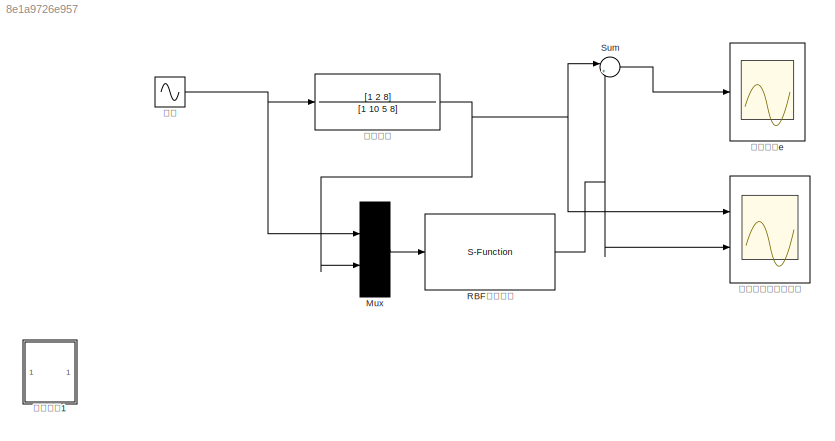
MODEL slx_8e1a9726e957
KIND model
CONFIG AbsTol = auto
CONFIG EnableMultiTasking = off
CONFIG FixedStep = 0.001
CONFIG MaxStep = auto
CONFIG MinStep = auto
CONFIG RelTol = 1e-3
CONFIG SampleTimeConstraint = Unconstrained
CONFIG Solver = ode4
CONFIG SolverName = ode4
CONFIG StartTime = 0.0
CONFIG StopTime = 10.0
BLOCK [Mux] Mux
  DisplayOption = bar
  Inputs = 2
  Ports = [2, 1]
BLOCK [S-Function] RBF神经网络
  EnableBusSupport = off
  FunctionName = Book2222_controller
  Ports = [1, 1]
  SFcnIsStateOwnerBlock = off
  SFunctionDeploymentMode = off
BLOCK [Sum] Sum
  IconShape = round
  InputSameDT = off
  Inputs = |+-
  OutDataTypeStr = Inherit: Inherit via internal rule
  Ports = [2, 1]
  SaturateOnIntegerOverflow = off
BLOCK [Scope] 实际输出与理想输出
  Floating = off
  NumInputPorts = 2
  Ports = [2]
  ScopeSpecificationString = Simulink.scopes.TimeScopeBlockCfg('CurrentConfiguration', extmgr.ConfigurationSet(extmgr.Configuration('Core','General UI',true,'FigureColor',[1 1 1]),extmgr.Configuration('Core','Source UI',true),extmgr.Configuration('Sources','WiredSimulink',true),extmgr.Configuration('Visuals','Time Domain',true,'SerializedDisplays',{struct('MinYLimReal','-1.80631','MaxYLimReal','1.97295','YLabelReal','','MinYL...<+1656ch>
BLOCK [TransferFcn] 被控对象
  Denominator = [1 10 5 8]
  Numerator = [1 2 8]
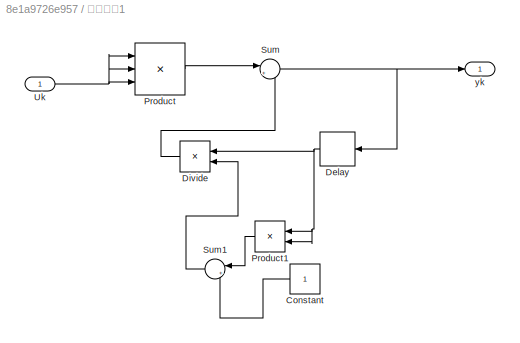
BLOCK [SubSystem] 被控对象1
  Commented = on
  Ports = [1, 1]
  RequestExecContextInheritance = off
BLOCK [Constant] 被控对象1/Constant
BLOCK [Delay] 被控对象1/Delay
  DelayLength = 1
  InputPortMap = u0
  Ports = [1, 1]
BLOCK [Product] 被控对象1/Divide
  InputSameDT = off
  Inputs = */
  OutDataTypeStr = Inherit: Inherit via internal rule
  Ports = [2, 1]
  RndMeth = Floor
  SaturateOnIntegerOverflow = off
BLOCK [Product] 被控对象1/Product
  InputSameDT = off
  Inputs = 3
  OutDataTypeStr = Inherit: Inherit via internal rule
  Ports = [3, 1]
  RndMeth = Floor
  SaturateOnIntegerOverflow = off
BLOCK [Product] 被控对象1/Product1
  InputSameDT = off
  OutDataTypeStr = Inherit: Inherit via internal rule
  Ports = [2, 1]
  RndMeth = Floor
  SaturateOnIntegerOverflow = off
BLOCK [Sum] 被控对象1/Sum
  IconShape = round
  InputSameDT = off
  Inputs = |++
  OutDataTypeStr = Inherit: Inherit via internal rule
  Ports = [2, 1]
  SaturateOnIntegerOverflow = off
BLOCK [Sum] 被控对象1/Sum1
  IconShape = round
  InputSameDT = off
  Inputs = |++
  OutDataTypeStr = Inherit: Inherit via internal rule
  Ports = [2, 1]
  SaturateOnIntegerOverflow = off
BLOCK [Inport] 被控对象1/Uk
  IconDisplay = Port number
BLOCK [Outport] 被控对象1/yk
  IconDisplay = Port number
BLOCK [Sin] 输入
  Ports = [0, 1]
  SampleTime = 0
BLOCK [Scope] 输出误差e
  Floating = off
  NumInputPorts = 1
  Ports = [1]
  ScopeSpecificationString = Simulink.scopes.TimeScopeBlockCfg('CurrentConfiguration', extmgr.ConfigurationSet(extmgr.Configuration('Core','General UI',true,'FigureColor',[1 1 1]),extmgr.Configuration('Core','Source UI',true),extmgr.Configuration('Sources','WiredSimulink',true,'DataLoggingVariableName','ScopeData1'),extmgr.Configuration('Visuals','Time Domain',true,'SerializedDisplays',{struct('MinYLimReal','-1.22927','MaxYLi...<+1683ch>
LINE Mux:1 -> RBF神经网络:1
NET RBF神经网络:1 -> Sum:2, 实际输出与理想输出:2
LINE Sum:1 -> 输出误差e:1
LINE 被控对象1/Constant:1 -> 被控对象1/Sum1:2
NET 被控对象1/Delay:1 -> 被控对象1/Divide:1, 被控对象1/Product1:1, 被控对象1/Product1:2
LINE 被控对象1/Divide:1 -> 被控对象1/Sum:2
LINE 被控对象1/Product1:1 -> 被控对象1/Sum1:1
LINE 被控对象1/Product:1 -> 被控对象1/Sum:1
LINE 被控对象1/Sum1:1 -> 被控对象1/Divide:2
NET 被控对象1/Sum:1 -> 被控对象1/Delay:1, 被控对象1/yk:1
NET 被控对象1/Uk:1 -> 被控对象1/Product:1, 被控对象1/Product:2, 被控对象1/Product:3
NET 被控对象:1 -> Mux:2, Sum:1, 实际输出与理想输出:1
NET 输入:1 -> Mux:1, 被控对象:1
note: NET lines group one-source signal fan-out (src -> all destinations, sorted); 1:1 wires keep LINE
